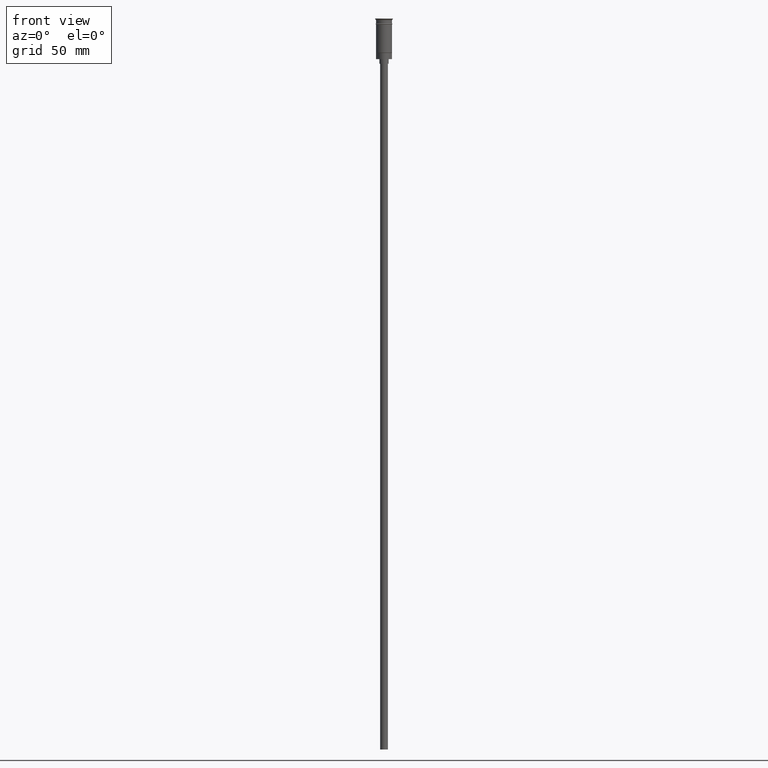
[diagram: clean part render]
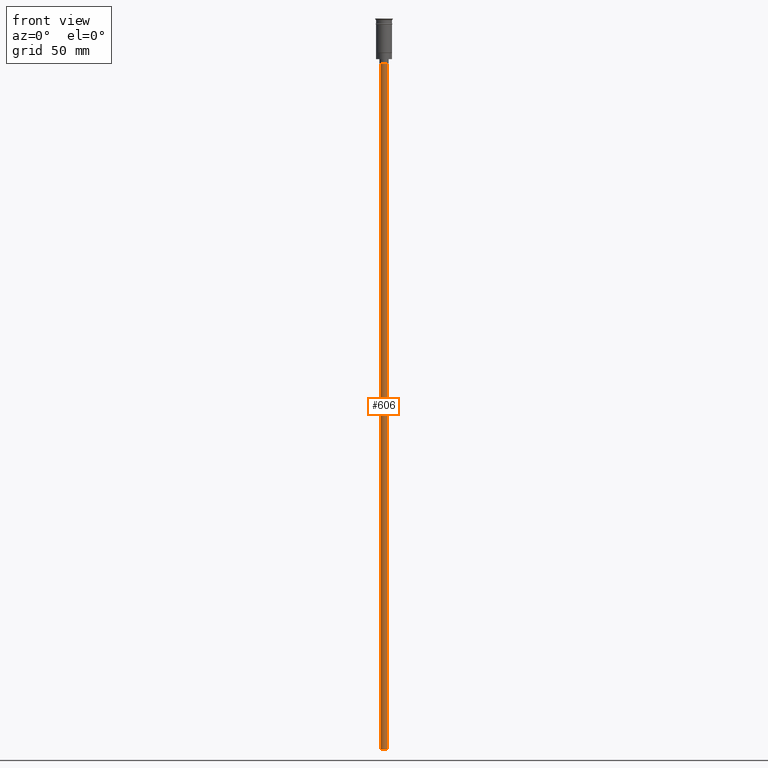
[diagram: same view with one face highlighted and labeled with its STEP entity id]
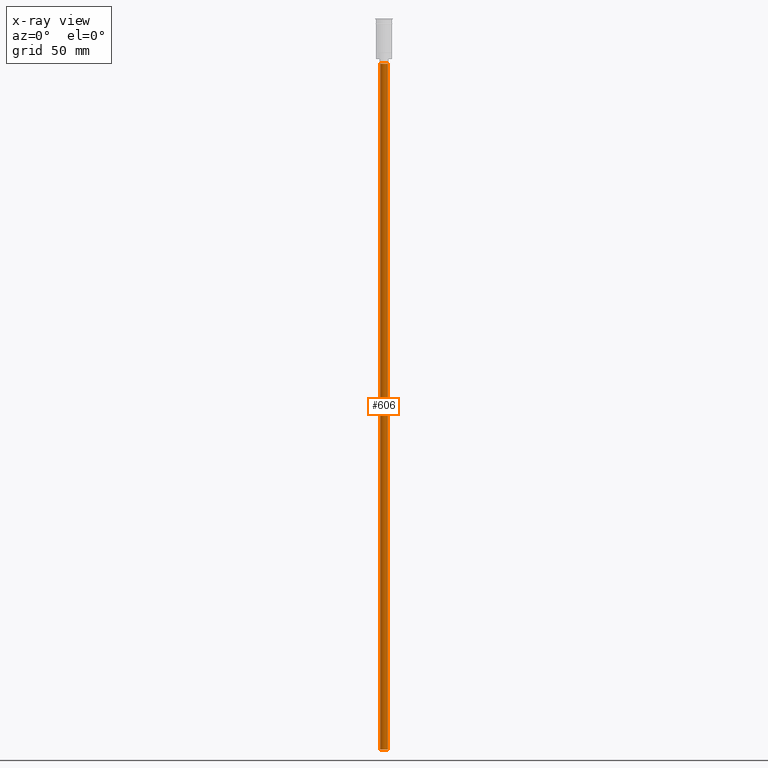
[diagram: x-ray of the same camera — body ghosted, the highlighted face saturated]
A machine part, front view. The second image highlights one B-rep face of the part: STEP entity #606.
The next image is the same camera in x-ray: the body ghosted, the highlighted face saturated — about 0% of this face is hidden behind the body in this view.
In plain terms, the highlighted cylindrical surface (edge-blend (fillet) strip) has radius 2.5 mm, axis along (-0, -0, 1).
Its self-contained STEP definition (entity closure, byte-faithful):
#8 = VECTOR ( 'NONE', #1455, 1000.000000000000000 ) ;
#34 = CYLINDRICAL_SURFACE ( 'NONE', #1258, 2.500000000000000000 ) ;
#78 = LINE ( 'NONE', #949, #8 ) ;
#140 = VECTOR ( 'NONE', #1197, 1000.000000000000000 ) ;
#183 = DIRECTION ( 'NONE',  ( 1.000000000000000000, 0.000000000000000000, 0.000000000000000000 ) ) ;
#198 = DIRECTION ( 'NONE',  ( 0.000000000000000000, 0.000000000000000000, -1.000000000000000000 ) ) ;
#200 = AXIS2_PLACEMENT_3D ( 'NONE', #1432, #198, #221 ) ;
#215 = EDGE_CURVE ( 'NONE', #1161, #932, #1359, .T. ) ;
#221 = DIRECTION ( 'NONE',  ( -1.000000000000000000, 0.000000000000000000, 0.000000000000000000 ) ) ;
#288 = DIRECTION ( 'NONE',  ( -0.000000000000000000, -0.000000000000000000, 1.000000000000000000 ) ) ;
#320 = EDGE_CURVE ( 'NONE', #915, #1161, #450, .T. ) ;
#353 = CARTESIAN_POINT ( 'NONE',  ( -2.500000000000000000, 3.061616997868383141E-16, -476.5000000000000568 ) ) ;
#450 = LINE ( 'NONE', #1223, #140 ) ;
#485 = CARTESIAN_POINT ( 'NONE',  ( -2.500000000000000000, 3.061616997868383141E-16, -29.50000000000000000 ) ) ;
#550 = CARTESIAN_POINT ( 'NONE',  ( 0.000000000000000000, 0.000000000000000000, -29.50000000000000000 ) ) ;
#606 = ADVANCED_FACE ( 'NONE', ( #1293 ), #34, .T. ) ;
#625 = CARTESIAN_POINT ( 'NONE',  ( 2.500000000000000000, 0.000000000000000000, -476.5000000000000568 ) ) ;
#672 = DIRECTION ( 'NONE',  ( 0.000000000000000000, 0.000000000000000000, -1.000000000000000000 ) ) ;
#805 = VERTEX_POINT ( 'NONE', #353 ) ;
#915 = VERTEX_POINT ( 'NONE', #625 ) ;
#932 = VERTEX_POINT ( 'NONE', #485 ) ;
#949 = CARTESIAN_POINT ( 'NONE',  ( -2.500000000000000000, 3.061616997868383141E-16, -476.5000000000000568 ) ) ;
#977 = AXIS2_PLACEMENT_3D ( 'NONE', #550, #672, #1166 ) ;
#1066 = EDGE_LOOP ( 'NONE', ( #1292, #1472, #1441, #1567 ) ) ;
#1139 = EDGE_CURVE ( 'NONE', #805, #932, #78, .T. ) ;
#1161 = VERTEX_POINT ( 'NONE', #1438 ) ;
#1166 = DIRECTION ( 'NONE',  ( -1.000000000000000000, 0.000000000000000000, 0.000000000000000000 ) ) ;
#1170 = CARTESIAN_POINT ( 'NONE',  ( 0.000000000000000000, 0.000000000000000000, -476.5000000000000568 ) ) ;
#1197 = DIRECTION ( 'NONE',  ( -0.000000000000000000, -0.000000000000000000, 1.000000000000000000 ) ) ;
#1223 = CARTESIAN_POINT ( 'NONE',  ( 2.500000000000000000, 0.000000000000000000, -476.5000000000000568 ) ) ;
#1258 = AXIS2_PLACEMENT_3D ( 'NONE', #1170, #288, #183 ) ;
#1292 = ORIENTED_EDGE ( 'NONE', *, *, #1139, .F. ) ;
#1293 = FACE_OUTER_BOUND ( 'NONE', #1066, .T. ) ;
#1359 = CIRCLE ( 'NONE', #977, 2.500000000000000000 ) ;
#1388 = CIRCLE ( 'NONE', #200, 2.500000000000000000 ) ;
#1432 = CARTESIAN_POINT ( 'NONE',  ( 0.000000000000000000, 0.000000000000000000, -476.5000000000000568 ) ) ;
#1438 = CARTESIAN_POINT ( 'NONE',  ( 2.500000000000000000, 0.000000000000000000, -29.50000000000000000 ) ) ;
#1441 = ORIENTED_EDGE ( 'NONE', *, *, #320, .T. ) ;
#1455 = DIRECTION ( 'NONE',  ( -0.000000000000000000, -0.000000000000000000, 1.000000000000000000 ) ) ;
#1472 = ORIENTED_EDGE ( 'NONE', *, *, #1594, .F. ) ;
#1567 = ORIENTED_EDGE ( 'NONE', *, *, #215, .T. ) ;
#1594 = EDGE_CURVE ( 'NONE', #915, #805, #1388, .T. ) ;